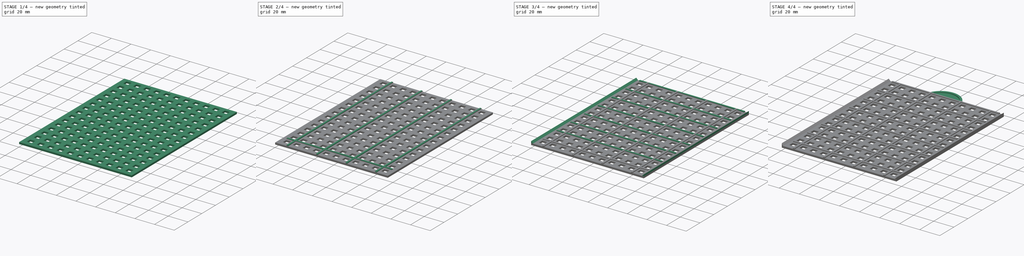
[diagram: build sequence overview — one tinted view per stage of 4, left to right]
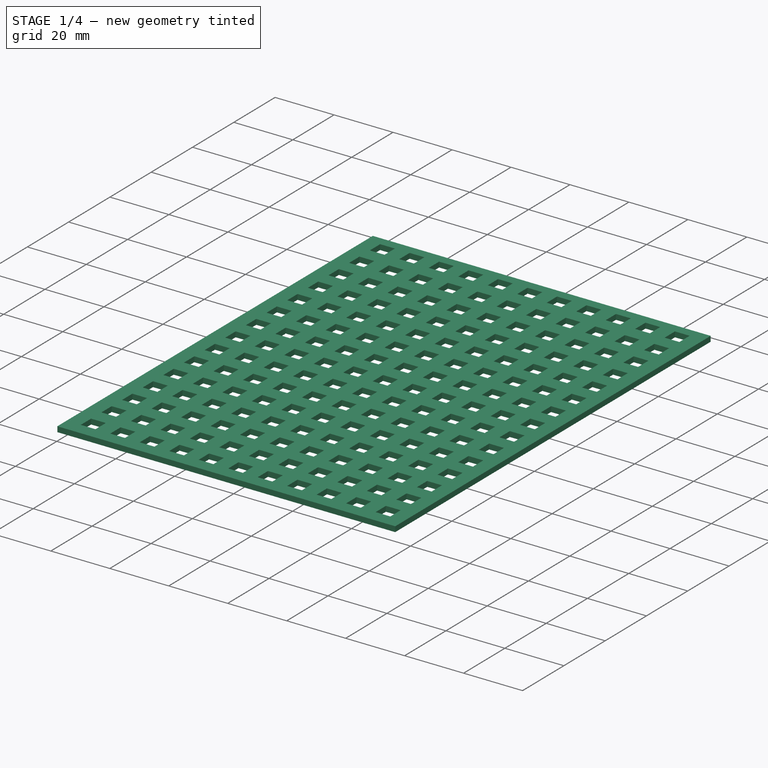
[diagram: stage 1 of 4 — iso view after this stage's code; geometry added in this stage tinted green]
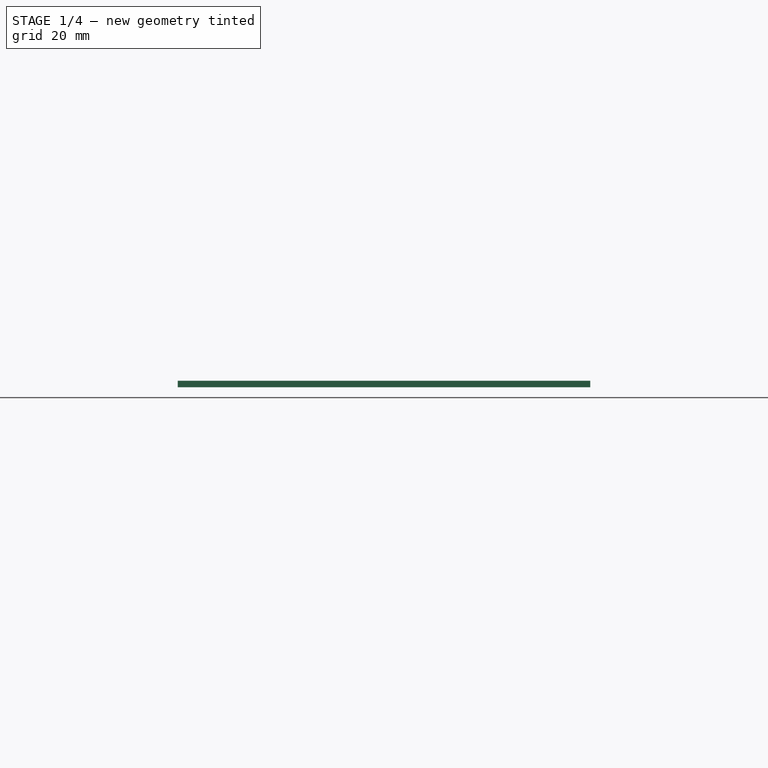
[diagram: stage 1 of 4 — front view after this stage's code; geometry added in this stage tinted green]
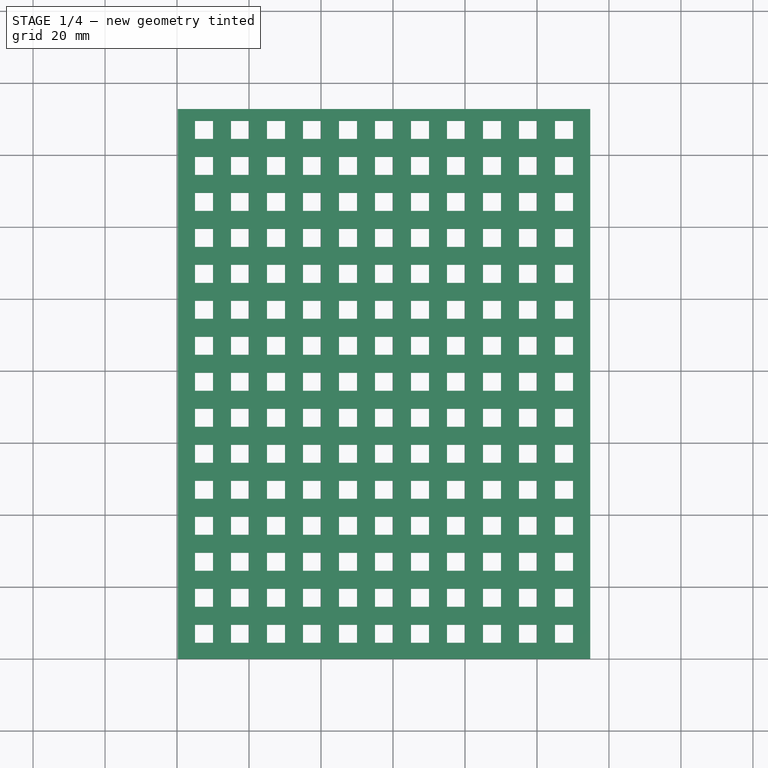
[diagram: stage 1 of 4 — top view after this stage's code; geometry added in this stage tinted green]
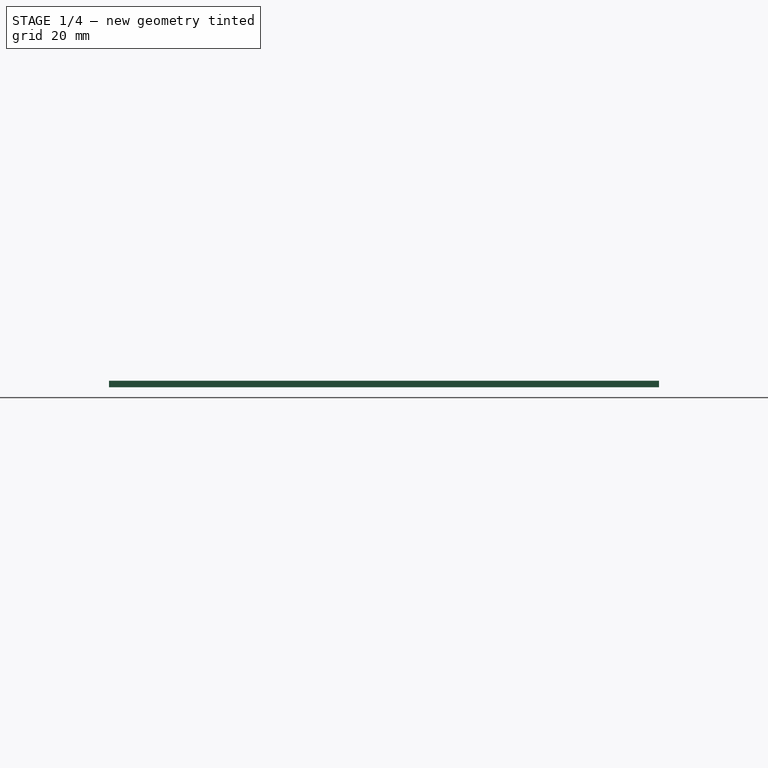
[diagram: stage 1 of 4 — right view after this stage's code; geometry added in this stage tinted green]
FCSTD DOCUMENT  (FreeCAD 0.21R33694 (Git))
Label: mbh_long
License: All rights reserved
LicenseURL: https://en.wikipedia.org/wiki/All_rights_reserved
objects: Sketcher::SketchObject×6, PartDesign::Pad×5, PartDesign::LinearPattern×4, PartDesign::Plane×3, Spreadsheet::Sheet×1, PartDesign::Pocket×1, PartDesign::MultiTransform×1, PartDesign::AdditiveWedge×1, PartDesign::Mirrored×1, PartDesign::Fillet×1, PartDesign::Body×1
note: 32 computed .brp shape members not serialized (recipe doc carries the construction recipe); baked Part::Feature solids carry a one-line shape summary decoded from their .brp

FEATURE [Spreadsheet::Sheet] Spreadsheet
  cells = A1='Name; B1='Value; C1='Description; D1='Fixed; E1='Calculated; F1='Public; G1='Axis; A2='bh_grid; B2(bh_grid)==5 mm; C2='The board holder grid size; D2='n; E2='n; F2='n; A3='bh_grid_x_size; B3(bh_grid_x_size)==trunc(bh_base_x / bh_grid / 2) * bh_grid * 2; E3='y; F3='n; G3='bh; A4='bh_grid_y_size; B4(bh_grid_y_size)==trunc((bh_base_y - bh_edge_to_center_of_first_grid_cutout_y - bh_grid) / bh_grid / 2) * bh_grid * 2; E4='y; F4='n; G4='bh; A5='bh_grid_x_amount; B5(bh_grid_x_amount)==trunc(bh_grid_x_size / bh_grid / 2) + 1; E5='y; F5='n; G5='bh; A6='bh_grid_y_amount; B6(bh_grid_y_amount)==trunc(bh_grid_y_size / bh_grid / 2) + 1; E6='y; F6='n; G6='bh; A7='bh_edge_to_usb_center_x; B7(bh_edge_to_usb_center_x)==3.5 * bh_grid; E7='y; G7='bh; A8='usb_socket_y; B8(usb_socket_y)==12.4 mm; C8='The cutout for the USB socket for (VID: Adafruit Industries LLC) (PID: 4055); D8='y; E8='n; F8='n; A9='usb_socket_x; B9(usb_socket_x)==23.2 mm; C9='The cutout for the USB socket for (VID: Adafruit Industries LLC) (PID: 4055); D9='y; E9='n; F9='n; A10='usb_socket_total_with_lip_x; B10(usb_socket_total_with_lip_x)==29 mm; C10='The total size with the lip of the USB socket for (VID: Adafruit Industries LLC) (PID: 4055); D10='y; E10='n; F10='n; A11='usb_socket_total_with_lip_y; B11(usb_socket_total_with_lip_y)==18.2 mm; C11='The total size with the lip of the USB socket for (VID: Adafruit Industries LLC) (PID: 4055); D11='y; E11='n; F11='n; A12='usb_socket_lip_only_z; B12(usb_socket_lip_only_z)==4.5 mm; C12='Only the lip of the USB socket for (VID: Adafruit Industries LLC) (PID: 4055); D12='y; E12='n; A13='usb_socket_lip_only_x; B13(usb_socket_lip_only_x)==(usb_socket_total_with_lip_x - usb_socket_x) / 2; C13='Only the lip of the USB socket for (VID: Adafruit Industries LLC) (PID: 4055); D13='y; E13='y; A14='usb_metal_gap; B14(usb_metal_gap)==2.7 mm; C14='The measured gap of the metal part of the USB plug between the casing and the lip of the usb socket; D14='y; E14='n; A15='usb_board_to_center_z; B15(usb_board_to_center_z)==mc_slot_offset_y / 2 - bh_base_z; A16='usb_metal_plug_width; B16(usb_metal_plug_width)==12.1 mm; A17='usb_metal_plug_height; B17(usb_metal_plug_height)==4.45 mm; A18='bh_base_x; B18(bh_base_x)==115 mm; C18='The base of the board holder; E18='y; G18='bh; A19='bh_base_y; B19(bh_base_y)==152.8 mm; C19='The base of the board holder; E19='y; G19='bh; A20='bh_base_z; B20(bh_base_z)==1.8 mm; E20='n; G20='bh; A24='bc_board_side_tol; B24(bc_board_side_tol)==0.2 mm; A25='bh_edge_to_center_of_first_grid_cutout_y; B25(bh_edge_to_center_of_first_grid_cutout_y)==usb_socket_lip_only_z + bh_grid / 2; D25='y; E25='y; G25='bh; A26='bh_support_beam_xy; B26(bh_support_beam_xy)==1.6 mm; C26='The width up the support beam to make the board holder more rigid, it should not interfere with the clip bottoms; D26='y; E26='n; G26='bh; A27='bh_support_beam_z; B27(bh_support_beam_z)==1.8 mm; D27='n; E27='n; G27='bh; A28='mc_back_thickness_z; B28(mc_back_thickness_z)==1.4 mm; A29='bh_stability_bar_z; B29(bh_stability_bar_z)==0.8 mm; A30='bh_stability_bar_width; B30(bh_stability_bar_width)==1.6 mm; A31='bh_stability_bar_x_size; B31(bh_stability_bar_x_size)==bh_base_x - 5 * bh_grid; A32='bh_stabiltiy_bar_x_amount; B32(bh_stabiltiy_bar_x_amount)==trunc(bh_stability_bar_x_size / bh_grid / 2) + 1; A33='bh_angle_connector_xz; B33(bh_angle_connector_xz)==2 mm; A34='bh_stability_bar_x_standoff; B34(bh_stability_bar_x_standoff)==bh_angle_connector_xz + 2 mm; A35='bh_stability_bar_y_size; B35(bh_stability_bar_y_size)==trunc((bh_base_y - bh_edge_to_center_of_first_grid_cutout_y - bh_grid) / bh_grid / 2) * bh_grid * 2; A36='bh_stabiltiy_bar_y_amount; B36(bh_stabiltiy_bar_y_amount)==trunc(bh_stability_bar_y_size / bh_grid / 2 + 1) + 1; A37='clip_height_from_board; B37(clip_height_from_board)==1.6 mm; A38='clip_overhang; B38(clip_overhang)==1.6 mm; A39='clip_thickness; B39(clip_thickness)==1.4 mm; A40='clip_deflection; B40(clip_deflection)==0.2 mm; C42=0; A43='center_usb_grid_offset_x; B43(center_usb_grid_offset_x)==bh_edge_to_usb_center_x - bh_grid * 3.5; D43='y; A44='srh_length; B44(srh_length)==bh_grid * 5; A45='srh_width; B45(srh_width)==bh_grid * 3; A46='srh_center_diameter; B46(srh_center_diameter)==5 mm; A47='srh_bottom_cutout; B47(srh_bottom_cutout)==srh_center_diameter * 0.8; A48='srh_ridge_grid; B48(srh_ridge_grid)==1.2 mm; D48='n; A51='src_bend_diameter; B51(src_bend_diameter)==0.4 mm; A52='src_clip_thickness; B52(src_clip_thickness)==1.4 mm; A53=0; A54='mc_inner_base_x; B54(mc_inner_base_x)==bh_base_x; E54='y; A55='mc_inner_base_y; B55(mc_inner_base_y)==mc_inner_base_x; A56='mc_edge_inside_support_x; B56(mc_edge_inside_support_x)==4 mm; C56='The extra support on the extentding inside for the module container; E56='n; A57='mc_grid; B57(mc_grid)==mc_inner_base_x + mc_inner_thickness * 2 + mc_dove_extrusion; E57='y; A58='mc_inner_thickness; B58(mc_inner_thickness)==1.5 mm; D58='y; E58='n; A59='mc_dove_extrusion; B59(mc_dove_extrusion)==2 mm; D59='y; E59='n; A60='mc_dove_angle; B60(mc_dove_angle)==60 °; A61='mc_slot_offset_y; B61(mc_slot_offset_y)==24 mm; A62='mc_slot_count; B62(mc_slot_count)=4; E62='n; A63='mc_bottom_center_dove_tail; B63(mc_bottom_center_dove_tail)==mc_slot_offset_y * (mc_slot_count / 2 - 0.25); A64='mc_dove_wing; B64(mc_dove_wing)==mc_dove_extrusion / tan(mc_dove_angle); A65='mc_dove_outer_shorter; B65(mc_dove_outer_shorter)==(mc_slot_offset_y + 2 * mc_dove_wing - 0.2 mm) / 2; E65='y; A66='mc_base_z; B66(mc_base_z)==mc_grid; A67='mc_bottom_usb_center_y; B67(mc_bottom_usb_center_y)==mc_slot_offset_y * mc_slot_count / 2 - mc_slot_offset_y / 2; A68='mc_top_of_bottom_board_y; B68(mc_top_of_bottom_board_y)==mc_bottom_usb_center_y + usb_board_to_center_z; +64 more cells
FEATURE [Sketcher::SketchObject] Sketch  label="Sketch_base"
  FullyConstrained = true
  MapMode = 5
  Support = -> [XY_Plane]
  expr: Constraints[11] = Spreadsheet.bc_board_side_tol
  expr: Constraints[6] = Spreadsheet.bh_base_y
  expr: Constraints[7] = Spreadsheet.bh_base_x - Spreadsheet.bc_board_side_tol * 2
  sketch-geometry (4):
    g0: LineSegment StartX=0.2 StartY=0 StartZ=0 EndX=114.8 EndY=0 EndZ=0
    g1: LineSegment StartX=114.8 StartY=0 StartZ=0 EndX=114.8 EndY=152.8 EndZ=0
    g2: LineSegment StartX=114.8 StartY=152.8 StartZ=0 EndX=0.2 EndY=152.8 EndZ=0
    g3: LineSegment StartX=0.2 StartY=152.8 StartZ=0 EndX=0.2 EndY=0 EndZ=0
  constraints (12):
    c: Coincident(g0,g1)
    c: Coincident(g1,g2)
    c: Coincident(g2,g3)
    c: Horizontal(g2)
    c: Vertical(g1)
    c: Vertical(g3)
    c: DistanceY(g1,g1) = 152.8
    c: DistanceX(g2,g2) = 114.6
    c: Coincident(g3,g0)
    c: Horizontal(g0)
    c: PointOnObject(g0,g-1)
    c: DistanceX(g-1,g0) = 0.2
FEATURE [PartDesign::Pad] Pad  label="Pad_base"
  Direction = (0,0,1)
  Length = 1.8
  Length2 = 10
  Profile = -> Sketch
  ReferenceAxis = -> Sketch [N_Axis]
  Type = 0
  expr: Length = Spreadsheet.bh_base_z
FEATURE [Sketcher::SketchObject] Sketch001  label="Sketch_bh_grid_start"
  FullyConstrained = true
  MapMode = 5
  Support = -> [XY_Plane]
  expr: Constraints[10] = Spreadsheet.bh_grid
  expr: Constraints[11] = Spreadsheet.bh_edge_to_center_of_first_grid_cutout_y
  expr: Constraints[12] = Spreadsheet.bh_grid
  sketch-geometry (5):
    g0: LineSegment StartX=5 StartY=4.5 StartZ=0 EndX=5 EndY=9.5 EndZ=0
    g1: LineSegment StartX=5 StartY=9.5 StartZ=0 EndX=10 EndY=9.5 EndZ=0
    g2: LineSegment StartX=10 StartY=9.5 StartZ=0 EndX=10 EndY=4.5 EndZ=0
    g3: LineSegment StartX=10 StartY=4.5 StartZ=0 EndX=5 EndY=4.5 EndZ=0
    g4: GeomPoint X=7.5 Y=7 Z=0
  constraints (13):
    c: Coincident(g0,g1)
    c: Coincident(g1,g2)
    c: Coincident(g2,g3)
    c: Coincident(g3,g0)
    c: Horizontal(g1)
    c: Horizontal(g3)
    c: Vertical(g0)
    c: Vertical(g2)
    c: Symmetric(g1,g0,g4)
    c: Equal(g2,g3)
    c: DistanceX(g3,g3) = 5
    c: DistanceY(g-1,g4) = 7
    c: DistanceX(g-1,g0) = 5
FEATURE [PartDesign::Pocket] Pocket  label="Pocket_grid_start"
  BaseFeature = -> Pad
  Direction = (0,0,-1)
  Length = 5
  Length2 = 5
  Profile = -> Sketch001
  ReferenceAxis = -> Sketch001 [N_Axis]
  Reversed = true
  Type = 1
FEATURE [PartDesign::Plane] DatumPlane  label="DatumPlane_center_x_usb"
  AttachmentOffset = pos=(0,0,17.5) rot=(0,0,1;0rad)
  Length = 206.839
  MapMode = 4
  Placement = pos=(17.5,0,0) rot=(0.57735,0.57735,0.57735;2.0944rad)
  ResizeMode = 0
  Support = -> [XY_Plane]
  Width = 69.3637
  expr: .AttachmentOffset.Base.z = Spreadsheet.bh_edge_to_usb_center_x
FEATURE [PartDesign::Plane] DatumPlane001  label="DatumPlane_center_of_start_grid"
  AttachmentOffset = pos=(0,0,-7) rot=(0,0,1;0rad)
  Length = 156.521
  MapMode = 3
  Placement = pos=(0,7,-1.6e-15) rot=(1,0,0;1.5708rad)
  ResizeMode = 0
  Support = -> [XY_Plane]
  Width = 66.7212
  expr: .AttachmentOffset.Base.z = -Spreadsheet.bh_edge_to_center_of_first_grid_cutout_y
FEATURE [PartDesign::LinearPattern] LinearPattern
  Direction = -> Sketch001 [H_Axis]
  Length = 110
  Occurrences = 12
  expr: Length = Spreadsheet.bh_grid_x_size
  expr: Occurrences = Spreadsheet.bh_grid_x_amount
FEATURE [PartDesign::LinearPattern] LinearPattern001
  Direction = -> Sketch001 [V_Axis]
  Length = 140
  Occurrences = 15
  expr: Length = Spreadsheet.bh_grid_y_size
  expr: Occurrences = Spreadsheet.bh_grid_y_amount
FEATURE [PartDesign::MultiTransform] MultiTransform  label="MultiTransform_grid"
  BaseFeature = -> Pocket
  Originals = -> [Pocket]
  Transformations = -> [LinearPattern,LinearPattern001]
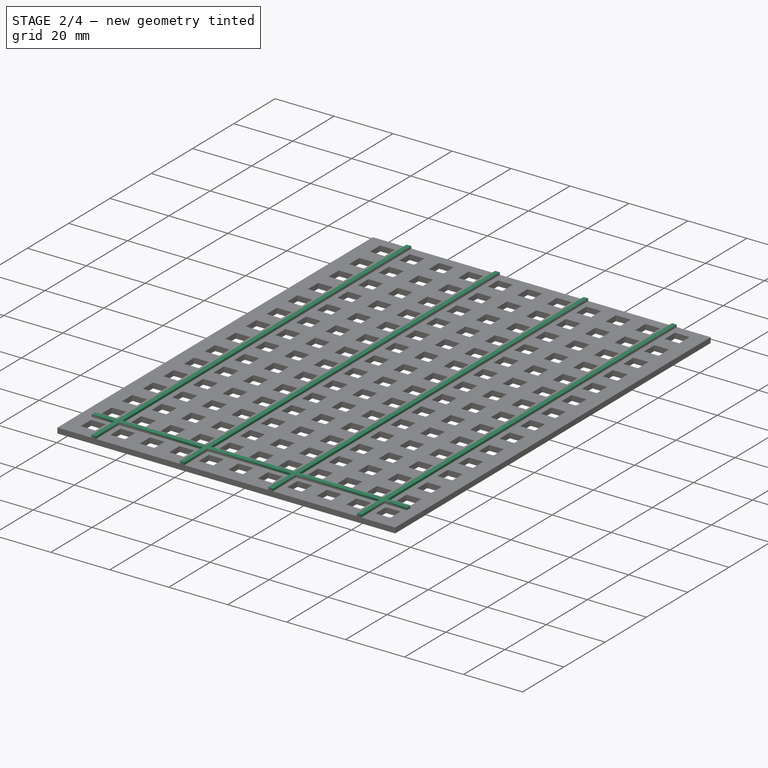
[diagram: stage 2 of 4 — iso view after this stage's code; geometry added in this stage tinted green]
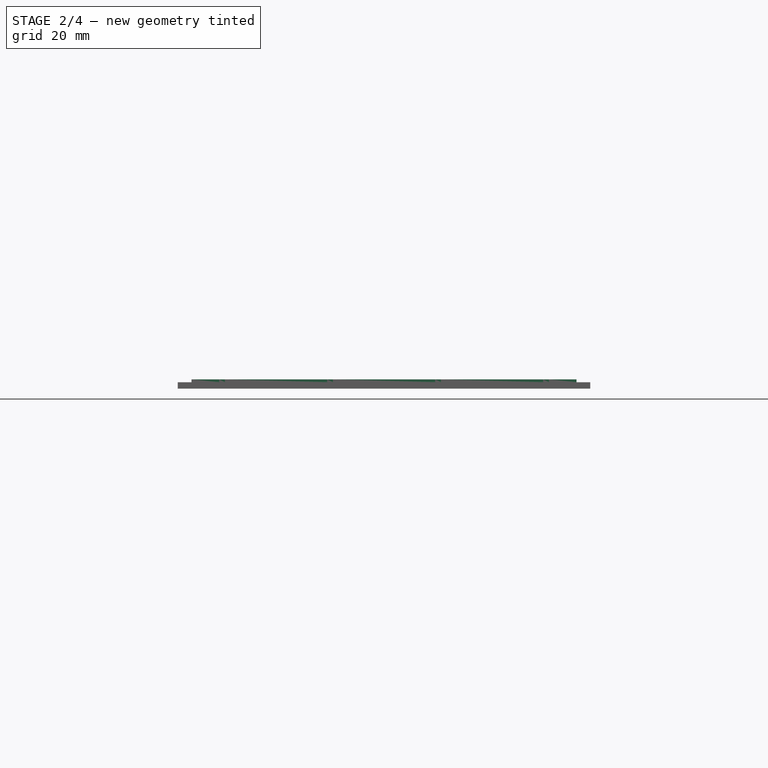
[diagram: stage 2 of 4 — front view after this stage's code; geometry added in this stage tinted green]
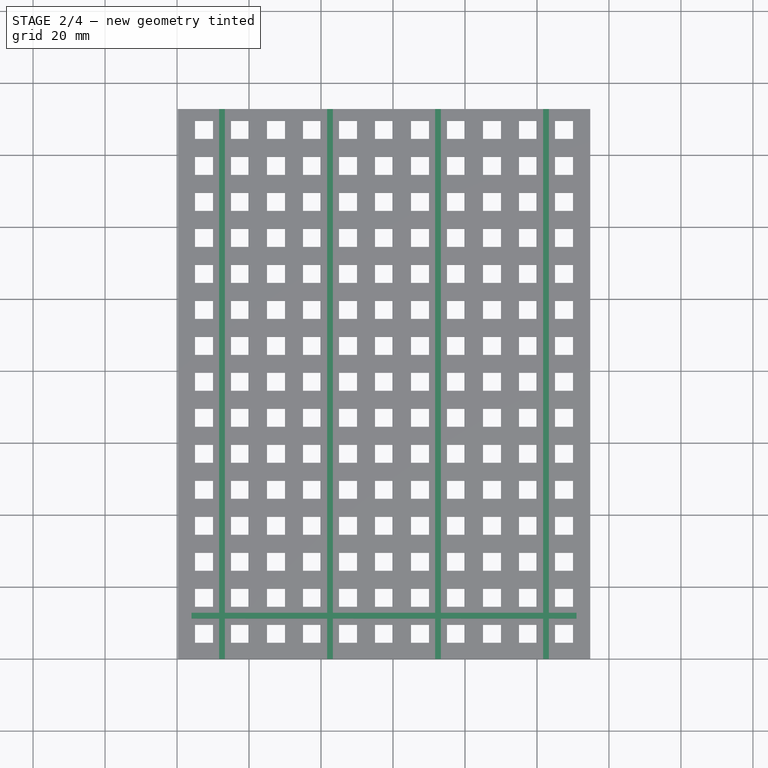
[diagram: stage 2 of 4 — top view after this stage's code; geometry added in this stage tinted green]
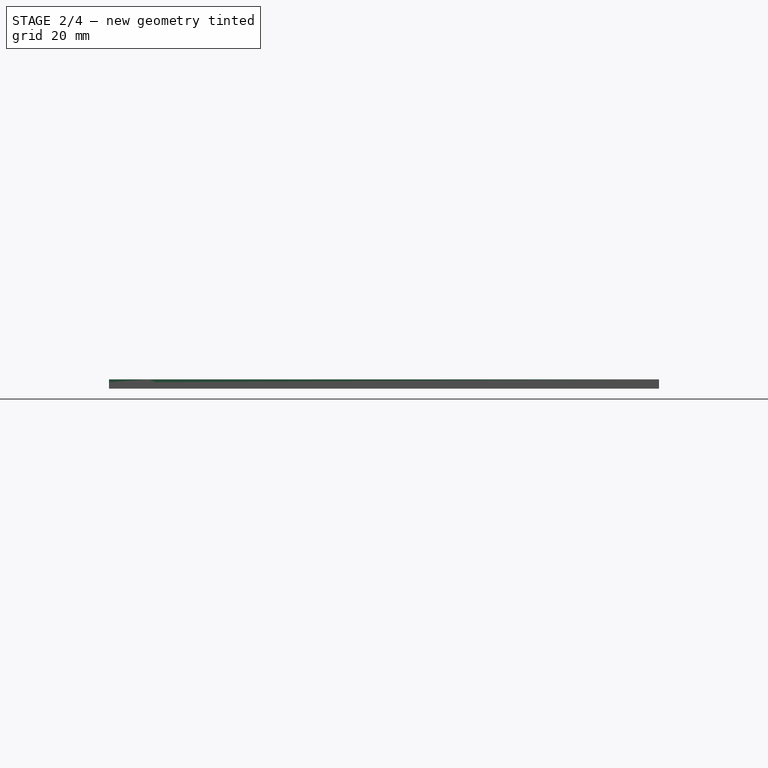
[diagram: stage 2 of 4 — right view after this stage's code; geometry added in this stage tinted green]
FEATURE [Sketcher::SketchObject] Sketch002  label="Sketch_stablilty_bar_y"
  FullyConstrained = true
  MapMode = 5
  Support = -> [XY_Plane]
  expr: Constraints[10] = Spreadsheet.bh_base_y
  expr: Constraints[12] = Spreadsheet.bh_grid * 2.5
  expr: Constraints[8] = Spreadsheet.bh_stability_bar_width
  sketch-geometry (5):
    g0: LineSegment StartX=11.7 StartY=0 StartZ=0 EndX=13.3 EndY=0 EndZ=0
    g1: LineSegment StartX=13.3 StartY=0 StartZ=0 EndX=13.3 EndY=152.8 EndZ=0
    g2: LineSegment StartX=13.3 StartY=152.8 StartZ=0 EndX=11.7 EndY=152.8 EndZ=0
    g3: LineSegment StartX=11.7 StartY=152.8 StartZ=0 EndX=11.7 EndY=0 EndZ=0
    g4: GeomPoint X=12.5 Y=0 Z=0
  constraints (13):
    c: Coincident(g0,g1)
    c: Coincident(g1,g2)
    c: Coincident(g2,g3)
    c: Coincident(g3,g0)
    c: Horizontal(g0)
    c: Horizontal(g2)
    c: Vertical(g1)
    c: Vertical(g3)
    c: DistanceX(g0,g0) = 1.6
    c: PointOnObject(g0,g-1)
    c: DistanceY(g1,g1) = 152.8
    c: Symmetric(g0,g0,g4)
    c: DistanceX(g-1,g4) = 12.5
FEATURE [PartDesign::Pad] Pad001  label="Pad_stablilty_bar_y"
  BaseFeature = -> MultiTransform
  Direction = (0,0,1)
  Length = 2.6
  Length2 = 10
  Profile = -> Sketch002
  ReferenceAxis = -> Sketch002 [N_Axis]
  Type = 0
  expr: Length = Spreadsheet.bh_base_z + Spreadsheet.bh_stability_bar_z
FEATURE [PartDesign::LinearPattern] LinearPattern002  label="LinearPattern_stablilty_bar_y"
  BaseFeature = -> Pad001
  Direction = -> Sketch002 [H_Axis]
  Length = 90
  Occurrences = 4
  Originals = -> [Pad001]
  expr: Length = Spreadsheet.bh_stability_bar_x_size
  expr: Occurrences = trunc(Spreadsheet.bh_stabiltiy_bar_x_amount / 2) - 1
FEATURE [Sketcher::SketchObject] Sketch003  label="Sketch_stablilty_bar_x"
  FullyConstrained = true
  MapMode = 5
  Support = -> [XY_Plane]
  expr: Constraints[10] = Spreadsheet.bh_stability_bar_x_standoff
  expr: Constraints[11] = Spreadsheet.bh_base_x - Spreadsheet.bh_stability_bar_x_standoff * 2
  expr: Constraints[12] = Spreadsheet.bh_grid + Spreadsheet.bh_edge_to_center_of_first_grid_cutout_y
  expr: Constraints[9] = Spreadsheet.bh_stability_bar_width
  sketch-geometry (5):
    g0: LineSegment StartX=4 StartY=12.8 StartZ=0 EndX=4 EndY=11.2 EndZ=0
    g1: LineSegment StartX=4 StartY=11.2 StartZ=0 EndX=111 EndY=11.2 EndZ=0
    g2: LineSegment StartX=111 StartY=11.2 StartZ=0 EndX=111 EndY=12.8 EndZ=0
    g3: LineSegment StartX=111 StartY=12.8 StartZ=0 EndX=4 EndY=12.8 EndZ=0
    g4: GeomPoint X=57.5 Y=12 Z=0
  constraints (13):
    c: Coincident(g0,g1)
    c: Coincident(g1,g2)
    c: Coincident(g2,g3)
    c: Coincident(g3,g0)
    c: Horizontal(g1)
    c: Horizontal(g3)
    c: Vertical(g0)
    c: Vertical(g2)
    c: Symmetric(g1,g0,g4)
    c: DistanceY(g0,g0) = 1.6
    c: DistanceX(g-1,g0) = 4
    c: DistanceX(g1,g1) = 107
    c: DistanceY(g-1,g4) = 12
FEATURE [PartDesign::Pad] Pad002  label="Pad_stablilty_bar_x"
  BaseFeature = -> LinearPattern002
  Direction = (0,0,1)
  Length = 2.6
  Length2 = 10
  Profile = -> Sketch003
  ReferenceAxis = -> Sketch003 [N_Axis]
  Type = 0
  expr: Length = Spreadsheet.bh_base_z + Spreadsheet.bh_stability_bar_z
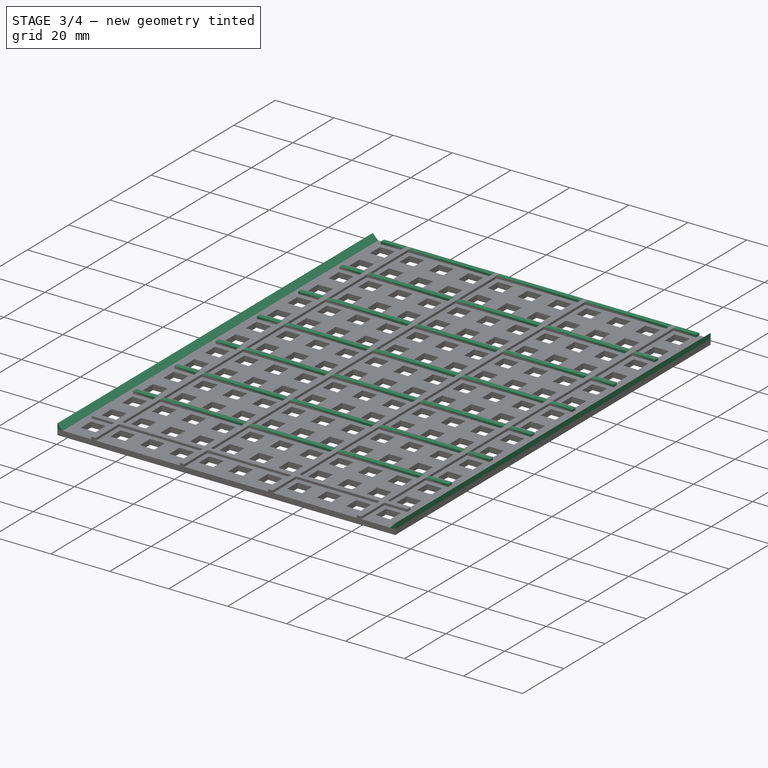
[diagram: stage 3 of 4 — iso view after this stage's code; geometry added in this stage tinted green]
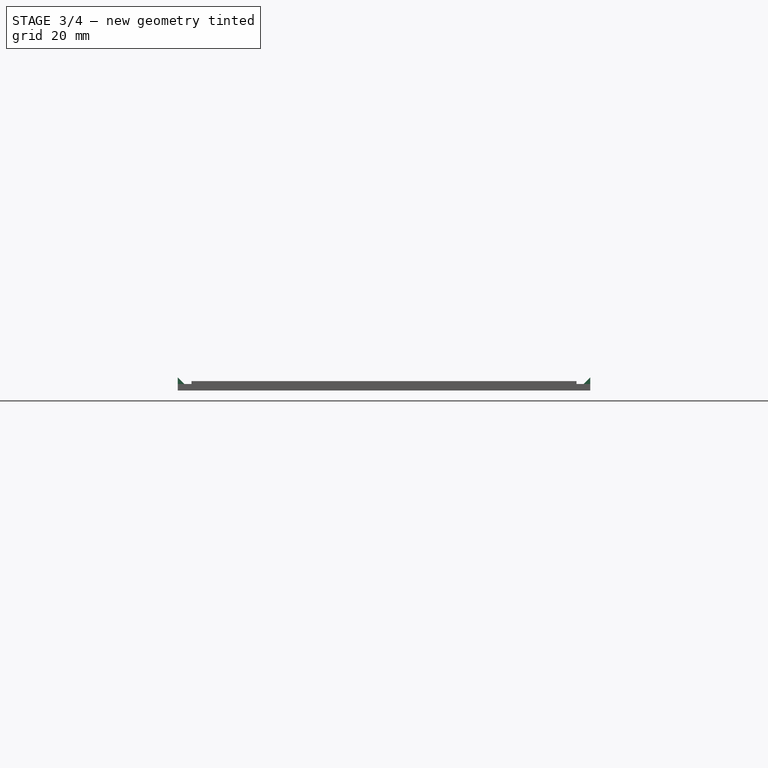
[diagram: stage 3 of 4 — front view after this stage's code; geometry added in this stage tinted green]
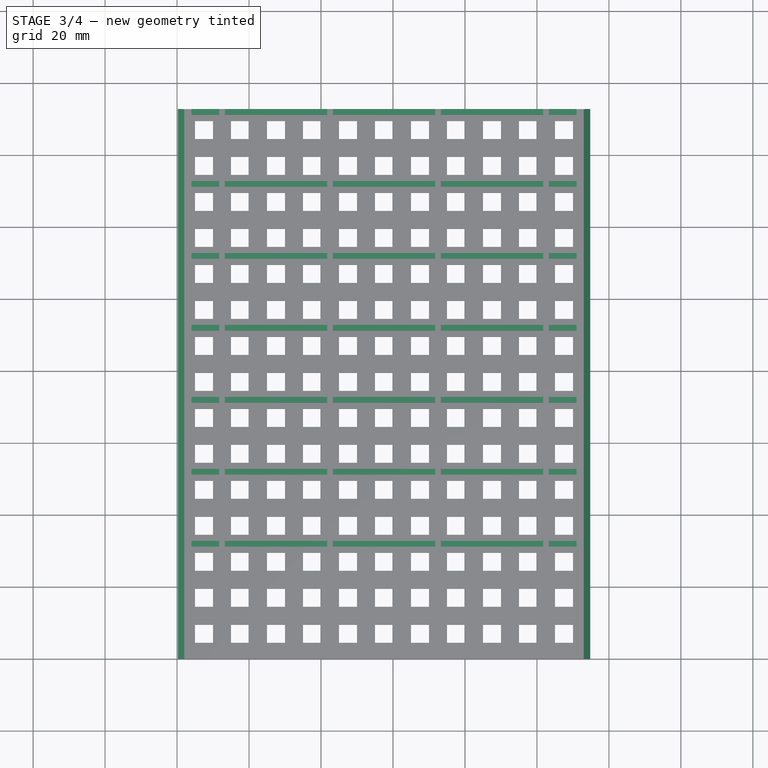
[diagram: stage 3 of 4 — top view after this stage's code; geometry added in this stage tinted green]
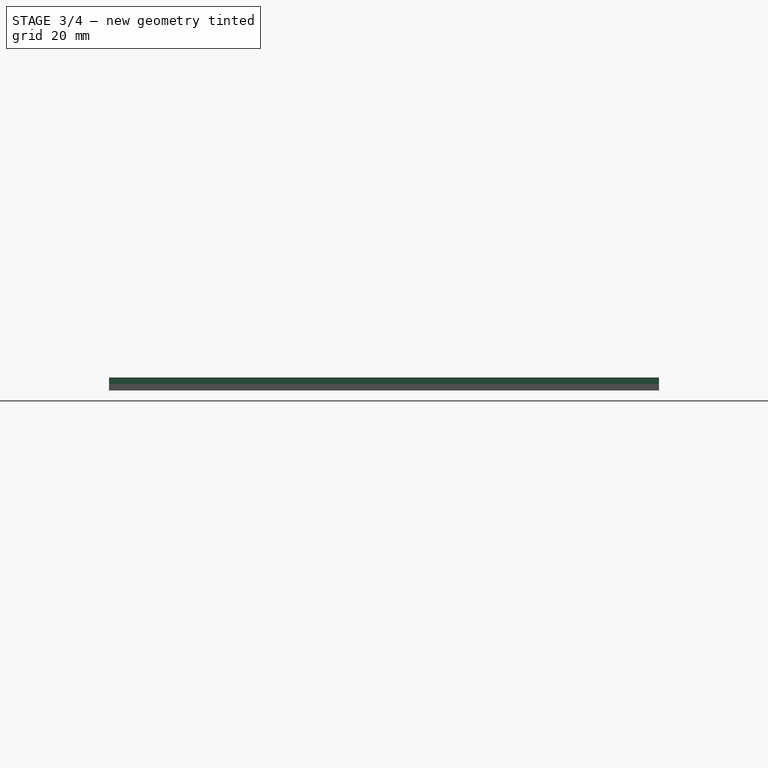
[diagram: stage 3 of 4 — right view after this stage's code; geometry added in this stage tinted green]
FEATURE [PartDesign::LinearPattern] LinearPattern003  label="LinearPattern_stablilty_bar_x"
  BaseFeature = -> Pad002
  Direction = -> Sketch003 [V_Axis]
  Length = 140
  Occurrences = 8
  Originals = -> [Pad002]
  expr: Length = Spreadsheet.bh_stability_bar_y_size
  expr: Occurrences = Spreadsheet.bh_stabiltiy_bar_y_amount / 2
FEATURE [PartDesign::AdditiveWedge] Wedge  label="Wedge_left_connector"
  AttacherType = Attacher::AttachEngine3D
  AttachmentOffset = pos=(0.2,152.8,1.8) rot=(1,0,0;1.5708rad)
  BaseFeature = -> LinearPattern003
  MapMode = 5
  Placement = pos=(0.2,152.8,1.8) rot=(1,0,0;1.5708rad)
  Support = -> [XY_Plane]
  X2max = 0
  X2min = 0
  Xmax = 1.8
  Xmin = 0
  Ymax = 1.8
  Ymin = 0
  Z2max = 152.8
  Z2min = 0
  Zmax = 152.8
  Zmin = 0
  expr: .AttachmentOffset.Base.x = Spreadsheet.bc_board_side_tol
  expr: .AttachmentOffset.Base.y = Spreadsheet.bh_base_y
  expr: .AttachmentOffset.Base.z = Spreadsheet.bh_base_z
  expr: Xmax = Spreadsheet.bh_angle_connector_xz - Spreadsheet.bc_board_side_tol
  expr: Ymax = Spreadsheet.bh_angle_connector_xz - Spreadsheet.bc_board_side_tol
  expr: Z2max = Spreadsheet.bh_base_y
  expr: Zmax = Spreadsheet.bh_base_y
FEATURE [PartDesign::Plane] DatumPlane002  label="DatumPlane_center_x"
  AttachmentOffset = pos=(0,0,57.5) rot=(0,0,1;0rad)
  Length = 206.839
  MapMode = 5
  Placement = pos=(57.5,-1.28e-14,1.28e-14) rot=(0.57735,0.57735,0.57735;2.0944rad)
  ResizeMode = 0
  Support = -> [YZ_Plane]
  Width = 69.3637
  expr: .AttachmentOffset.Base.z = Spreadsheet.bh_base_x / 2
FEATURE [PartDesign::Mirrored] Mirrored  label="Mirrored_right_connector"
  BaseFeature = -> Wedge
  MirrorPlane = -> DatumPlane002
  Originals = -> [Wedge]
  Placement = pos=(0.2,152.8,1.8) rot=(1,0,0;1.5708rad)
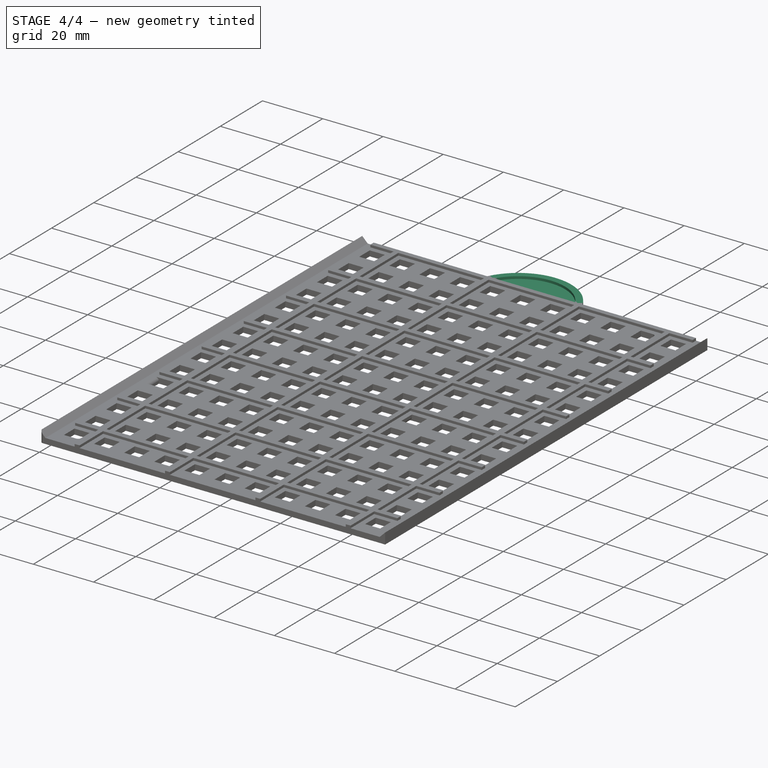
[diagram: stage 4 of 4 — iso view after this stage's code; geometry added in this stage tinted green]
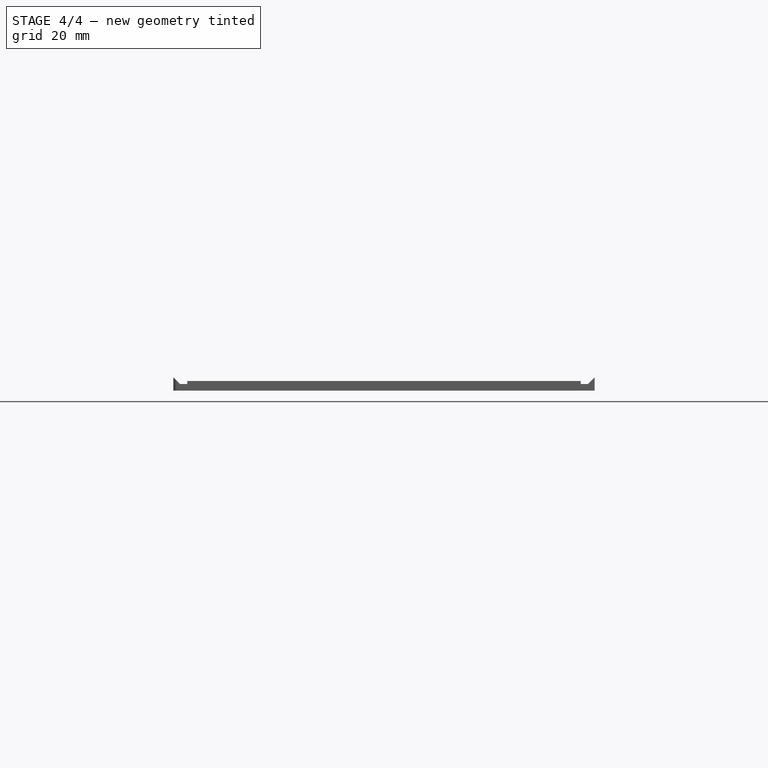
[diagram: stage 4 of 4 — front view after this stage's code; geometry added in this stage tinted green]
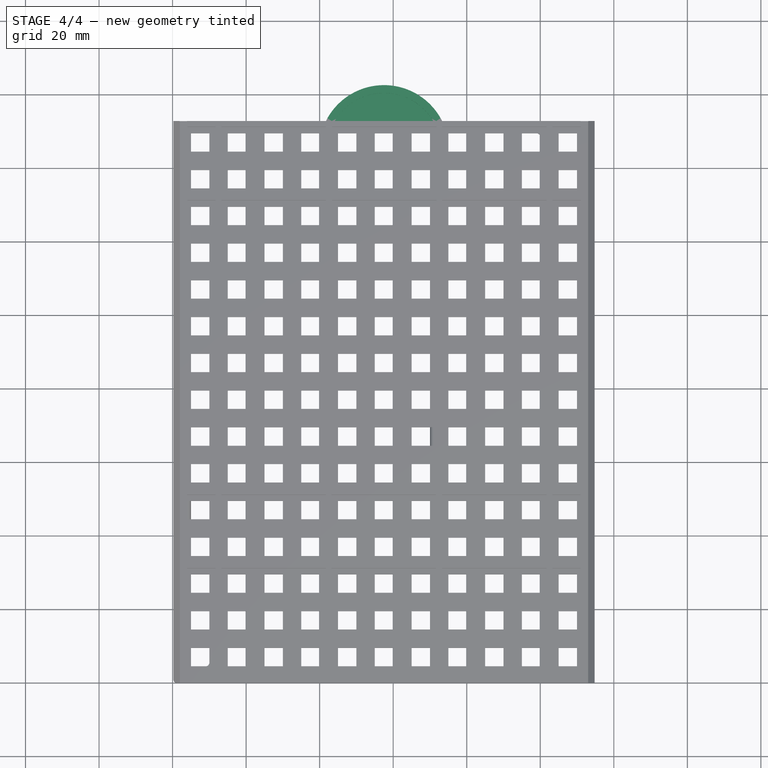
[diagram: stage 4 of 4 — top view after this stage's code; geometry added in this stage tinted green]
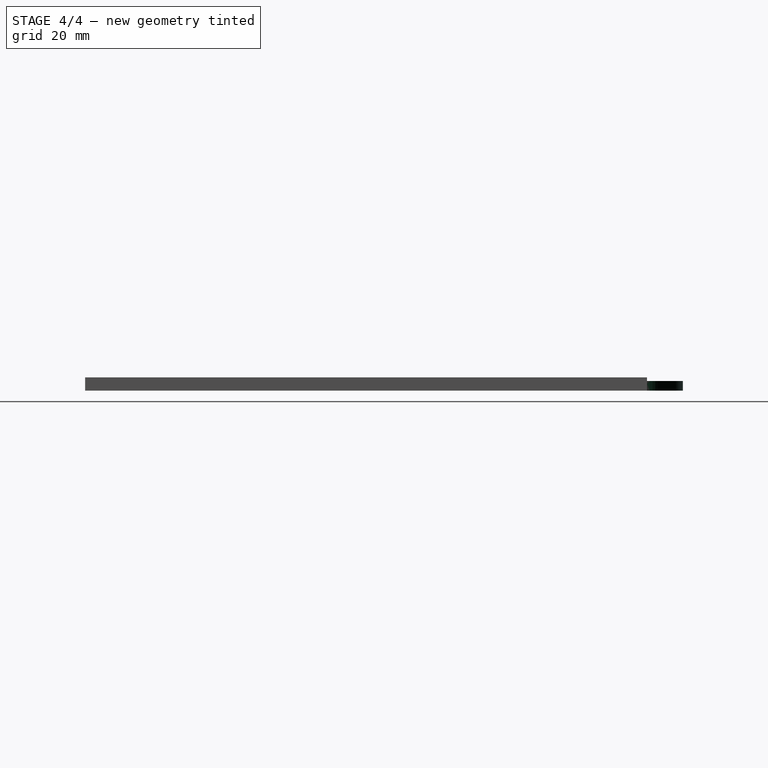
[diagram: stage 4 of 4 — right view after this stage's code; geometry added in this stage tinted green]
FEATURE [Sketcher::SketchObject] Sketch005  label="Sketch_label"
  FullyConstrained = true
  MapMode = 5
  Support = -> [XY_Plane]
  expr: Constraints[12] = (Spreadsheet.bh_grid * 6 + Spreadsheet.bh_stability_bar_width) / 4
  expr: Constraints[5] = Spreadsheet.bh_grid * 6 + Spreadsheet.bh_stability_bar_width
  expr: Constraints[6] = Spreadsheet.bh_base_y
  expr: Constraints[7] = Spreadsheet.bh_stability_bar_width
  expr: Constraints[8] = Spreadsheet.bh_grid * 8.5 - Spreadsheet.bh_stability_bar_width / 2
  sketch-geometry (4):
    g0: LineSegment StartX=73.3 StartY=152.8 StartZ=0 EndX=73.3 EndY=151.2 EndZ=0
    g1: LineSegment StartX=73.3 StartY=151.2 StartZ=0 EndX=41.7 EndY=151.2 EndZ=0
    g2: LineSegment StartX=41.7 StartY=151.2 StartZ=0 EndX=41.7 EndY=152.8 EndZ=0
    g3: ArcOfCircle CenterX=57.5 CenterY=144.9 CenterZ=0 NormalX=0 NormalY=0 NormalZ=1 AngleXU=0 Radius=17.6649 StartAngle=0.463648 EndAngle=2.67795
  constraints (13):
    c: Coincident(g0,g1)
    c: Coincident(g1,g2)
    c: Horizontal(g1)
    c: Vertical(g0)
    c: Vertical(g2)
    c: DistanceX(g2,g0) = 31.6
    c: DistanceY(g-1,g2) = 152.8
    c: DistanceY(g0,g0) = 1.6
    c: DistanceX(g-1,g2) = 41.7
    c: Coincident(g3,g2)
    c: Coincident(g3,g0)
    c: Equal(g0,g2)
    c: DistanceY(g3,g2) = 7.9
FEATURE [PartDesign::Pad] Pad003  label="Pad_label"
  BaseFeature = -> Mirrored
  Direction = (0,0,1)
  Length = 1.8
  Length2 = 10
  Placement = pos=(0.2,152.8,1.8) rot=(1,0,0;1.5708rad)
  Profile = -> Sketch005
  ReferenceAxis = -> Sketch005 [N_Axis]
  Type = 0
  expr: Length = Spreadsheet.bh_base_z
FEATURE [Sketcher::SketchObject] Sketch119  label="Sketch_label_holder"
  FullyConstrained = true
  MapMode = 5
  Support = -> [XY_Plane]
  expr: Constraints[11] = (Spreadsheet.bh_grid * 6 + Spreadsheet.bh_stability_bar_width) / 4
  expr: Constraints[19] = Spreadsheet.bh_grid * 8.5 - Spreadsheet.bh_stability_bar_width / 2
  expr: Constraints[5] = Spreadsheet.bh_grid * 6 + Spreadsheet.bh_stability_bar_width
  expr: Constraints[6] = Spreadsheet.bh_base_y
  expr: Constraints[7] = Spreadsheet.bh_stability_bar_width
  sketch-geometry (6):
    g0: LineSegment StartX=73.3 StartY=152.8 StartZ=0 EndX=73.3 EndY=151.2 EndZ=0
    g1: LineSegment StartX=73.3 StartY=151.2 StartZ=0 EndX=71.7 EndY=151.2 EndZ=0
    g2: LineSegment StartX=41.7 StartY=151.2 StartZ=0 EndX=41.7 EndY=152.8 EndZ=0
    g3: ArcOfCircle CenterX=57.5 CenterY=144.9 CenterZ=0 NormalX=0 NormalY=0 NormalZ=1 AngleXU=0 Radius=17.6649 StartAngle=0.463648 EndAngle=2.67795
    g4: ArcOfCircle CenterX=57.5 CenterY=144.9 CenterZ=0 NormalX=0 NormalY=0 NormalZ=1 AngleXU=0 Radius=15.5348 StartAngle=0.417571 EndAngle=2.72402
    g5: LineSegment StartX=43.3 StartY=151.2 StartZ=0 EndX=41.7 EndY=151.2 EndZ=0
  constraints (20):
    c: Coincident(g0,g1)
    c: Coincident(g5,g2)
    c: Horizontal(g1)
    c: Vertical(g0)
    c: Vertical(g2)
    c: DistanceX(g2,g0) = 31.6
    c: DistanceY(g-1,g2) = 152.8
    c: DistanceY(g0,g0) = 1.6
    c: Coincident(g3,g2)
    c: Coincident(g3,g0)
    c: Equal(g0,g2)
    c: DistanceY(g3,g2) = 7.9
    c: Coincident(g1,g4)
    c: Coincident(g5,g4)
    c: Equal(g1,g0)
    c: Equal(g5,g1)
    c: Horizontal(g5)
    c: Horizontal(g1,g4)
    c: DistanceY(g3,g4) = 0
    c: DistanceX(g-1,g2) = 41.7
FEATURE [PartDesign::Pad] Pad090  label="Pad_label_holder"
  BaseFeature = -> Pad003
  Direction = (0,0,1)
  Length = 2.6
  Length2 = 10
  Placement = pos=(0.2,152.8,1.8) rot=(1,0,0;1.5708rad)
  Profile = -> Sketch119
  ReferenceAxis = -> Sketch119 [N_Axis]
  Type = 0
  expr: Length = Spreadsheet.bh_base_z + Spreadsheet.bh_stability_bar_z
FEATURE [PartDesign::Fillet] Fillet007  label="Fillet_bh_insertion_edge"
  Base = -> Pad090 [Edge153,Edge234,Edge1615,Edge2022,Edge1921,Edge2125,Edge5,Edge80]
  BaseFeature = -> Pad090
  Placement = pos=(0.2,152.8,1.8) rot=(1,0,0;1.5708rad)
  Radius = 1
  SupportTransform = false
  UseAllEdges = false
FEATURE [PartDesign::Body] Body  label="bh"
  Group = -> [Sketch,Pad,Sketch001,Pocket,DatumPlane,DatumPlane001,MultiTransform,LinearPattern,LinearPattern001,Sketch002,Pad001,LinearPattern002,Sketch003,Pad002,LinearPattern003,Wedge,DatumPlane002,Mirrored,Sketch005,Pad003,Sketch119,Pad090,Fillet007]
  Origin = -> Origin
  Placement = pos=(-57.5,-46.2,1.4) rot=(1,0,0;1.5708rad)
  Tip = -> Pad090
  expr: .Placement.Base.x = -Spreadsheet.mc_inner_base_x / 2
  expr: .Placement.Base.y = -Spreadsheet.mc_top_of_bottom_board_y
  expr: .Placement.Base.z = Spreadsheet.mc_back_thickness_z
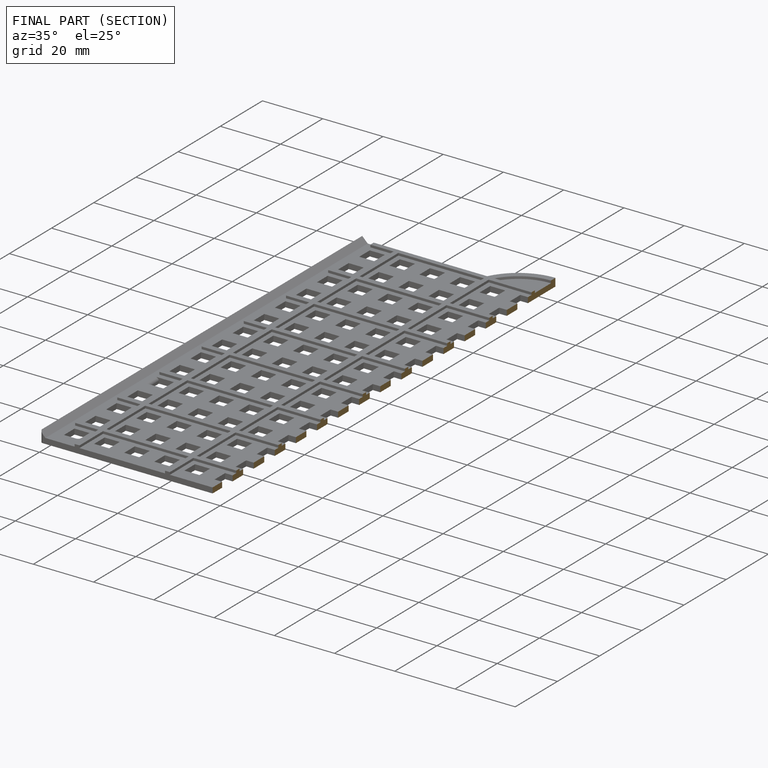
[diagram: finished part — half-section view (interior)]
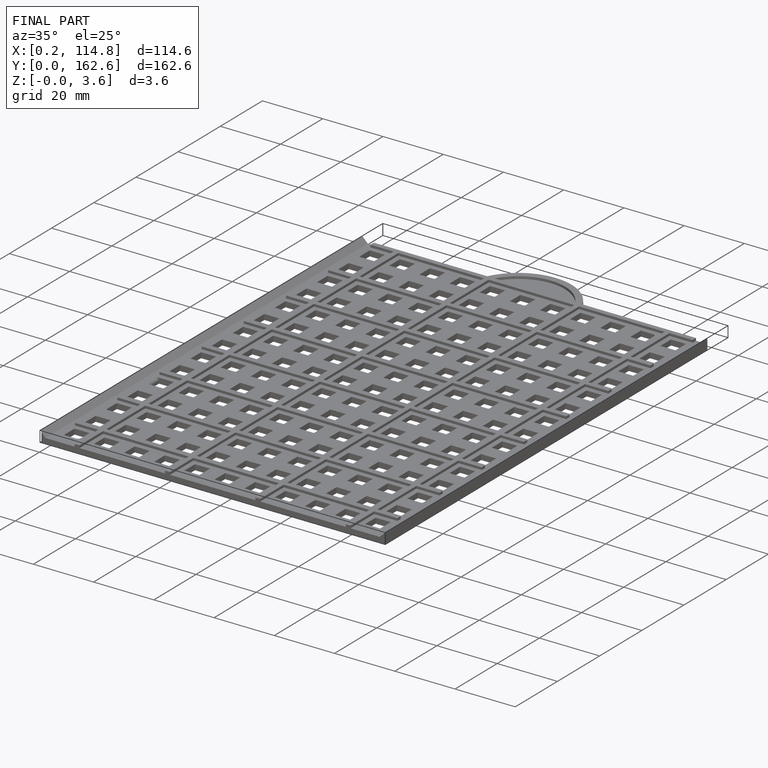
[diagram: finished part — iso view with bounding-box wireframe]
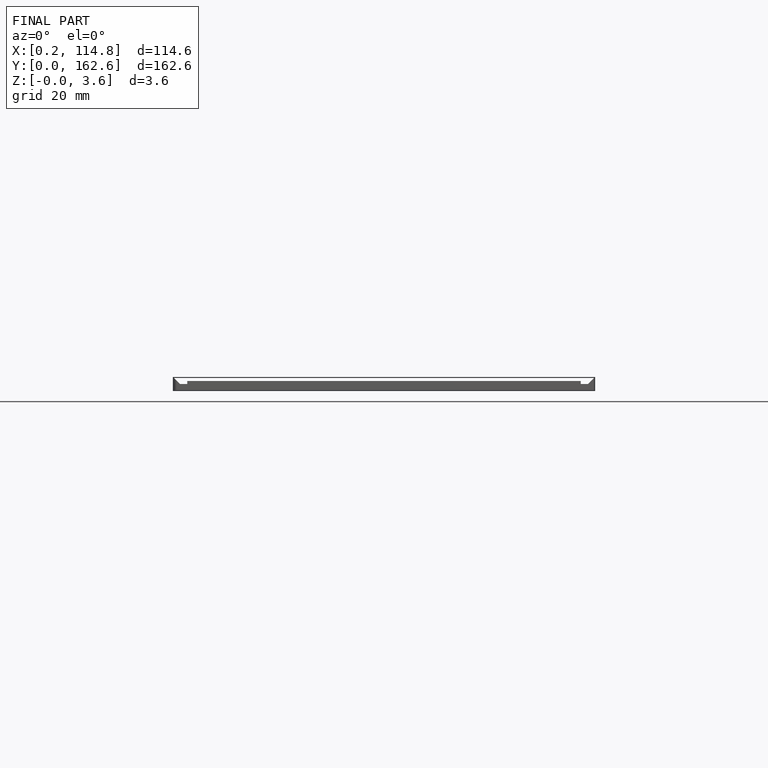
[diagram: finished part — front view with bounding-box wireframe]
